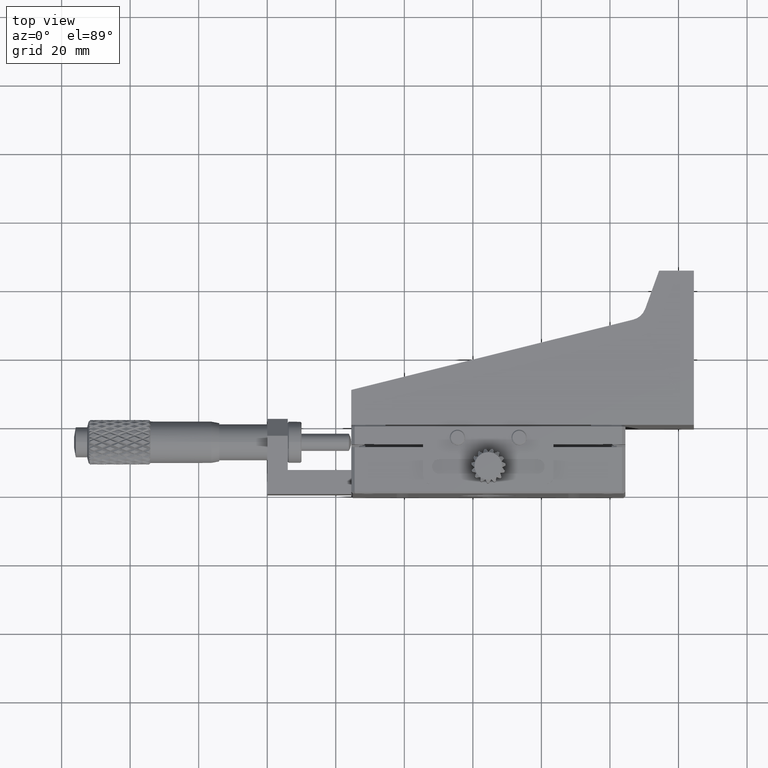
[diagram: clean part render]
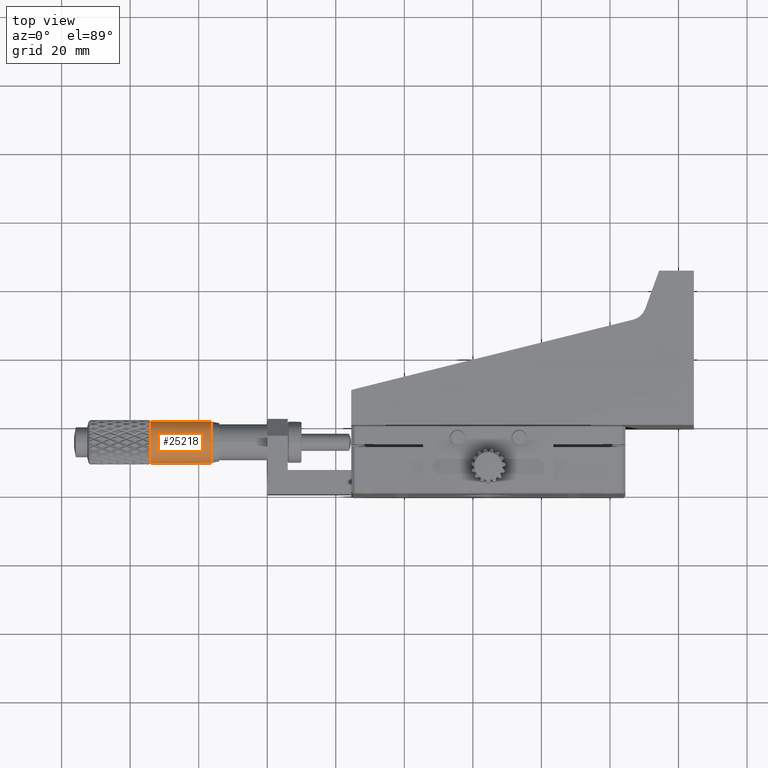
[diagram: same view with one face highlighted and labeled with its STEP entity id]
A machine part, top view. The second image highlights one B-rep face of the part: STEP entity #25218.
In plain terms, the highlighted cylindrical surface (bore or boss wall) has radius 6.051 mm, axis along (-1, 0, 0).
Its self-contained STEP definition (entity closure, byte-faithful):
#100 = DIRECTION ( 'NONE',  ( -1.000000000000000000, 0.000000000000000000, 2.238858211715239907E-20 ) ) ;
#155 = CARTESIAN_POINT ( 'NONE',  ( -34.05100000015932693, 20.20751008924129266, 3.539907586928638050 ) ) ;
#369 = ORIENTED_EDGE ( 'NONE', *, *, #39286, .T. ) ;
#560 = DIRECTION ( 'NONE',  ( 0.000000000000000000, -2.580153905766197735E-15, 1.000000000000000000 ) ) ;
#580 = CARTESIAN_POINT ( 'NONE',  ( -34.05100000000000193, 15.30000000000000071, -5.051647673718340635E-19 ) ) ;
#646 = DIRECTION ( 'NONE',  ( 1.000000000000000000, -0.000000000000000000, -2.238858211715239907E-20 ) ) ;
#694 = DIRECTION ( 'NONE',  ( 1.000000000000000000, -0.000000000000000000, -2.238858211715239907E-20 ) ) ;
#737 = CARTESIAN_POINT ( 'NONE',  ( -34.05100000015931982, 20.18315619527319882, -3.573427846279395137 ) ) ;
#782 = DIRECTION ( 'NONE',  ( 0.000000000000000000, 0.000000000000000000, 1.000000000000000000 ) ) ;
#1102 = DIRECTION ( 'NONE',  ( 0.000000000000000000, 8.600513019220660102E-16, 1.000000000000000000 ) ) ;
#1172 = CARTESIAN_POINT ( 'NONE',  ( -34.05100000000000193, 15.30000000000000071, -5.051647673718340635E-19 ) ) ;
#1189 = AXIS2_PLACEMENT_3D ( 'NONE', #17262, #20570, #5320 ) ;
#1238 = ORIENTED_EDGE ( 'NONE', *, *, #19862, .T. ) ;
#1457 = CARTESIAN_POINT ( 'NONE',  ( -34.05100000012796357, 21.04840745227851784, 1.889553588175999721 ) ) ;
#1574 = VERTEX_POINT ( 'NONE', #47646 ) ;
#1579 = CIRCLE ( 'NONE', #32355, 6.051000000000000156 ) ;
#1826 = CIRCLE ( 'NONE', #23721, 6.051000000000000156 ) ;
#1948 = AXIS2_PLACEMENT_3D ( 'NONE', #24183, #31257, #39605 ) ;
#2143 = EDGE_LOOP ( 'NONE', ( #34148, #19107, #26807, #40915, #11643, #17091, #48289, #5551, #3003, #27859, #50152, #14815, #26030, #43819, #14726, #33409, #22529, #2162, #1238, #36184, #5132, #23498, #41895, #33923, #48294, #44883, #2766, #369, #20745, #41861, #9617, #39833, #6893, #46920, #26250, #32513, #19829, #38737, #47581, #29854 ) ) ;
#2162 = ORIENTED_EDGE ( 'NONE', *, *, #20408, .T. ) ;
#2699 = VERTEX_POINT ( 'NONE', #36345 ) ;
#2723 = DIRECTION ( 'NONE',  ( 1.000000000000000000, -0.000000000000000000, -2.238858211715239907E-20 ) ) ;
#2766 = ORIENTED_EDGE ( 'NONE', *, *, #43908, .T. ) ;
#2905 = VERTEX_POINT ( 'NONE', #20649 ) ;
#2919 = DIRECTION ( 'NONE',  ( 0.000000000000000000, 0.000000000000000000, 1.000000000000000000 ) ) ;
#3003 = ORIENTED_EDGE ( 'NONE', *, *, #20875, .T. ) ;
#3053 = CARTESIAN_POINT ( 'NONE',  ( -34.05100000000000193, 15.30000000000000071, -5.051647673718340635E-19 ) ) ;
#3130 = VERTEX_POINT ( 'NONE', #41364 ) ;
#3810 = DIRECTION ( 'NONE',  ( 0.000000000000000000, 8.027145484605948508E-15, 1.000000000000000000 ) ) ;
#3825 = CIRCLE ( 'NONE', #10319, 6.051000000000000156 ) ;
#3904 = EDGE_CURVE ( 'NONE', #19767, #4836, #9988, .T. ) ;
#3966 = CIRCLE ( 'NONE', #45253, 6.051000000000000156 ) ;
#4436 = VERTEX_POINT ( 'NONE', #16689 ) ;
#4584 = DIRECTION ( 'NONE',  ( 1.000000000000000000, -0.000000000000000000, -2.238858211715239907E-20 ) ) ;
#4756 = CARTESIAN_POINT ( 'NONE',  ( -34.05100000015932693, 11.72657215372058914, -4.883156195273184785 ) ) ;
#4836 = VERTEX_POINT ( 'NONE', #8189 ) ;
#4867 = DIRECTION ( 'NONE',  ( 0.000000000000000000, -2.035454747882222894E-14, 1.000000000000000000 ) ) ;
#4944 = EDGE_CURVE ( 'NONE', #16737, #20732, #39146, .T. ) ;
#5084 = DIRECTION ( 'NONE',  ( 1.000000000000000000, -0.000000000000000000, -2.238858211715239907E-20 ) ) ;
#5132 = ORIENTED_EDGE ( 'NONE', *, *, #8416, .T. ) ;
#5320 = DIRECTION ( 'NONE',  ( 0.000000000000000000, 0.000000000000000000, 1.000000000000000000 ) ) ;
#5480 = DIRECTION ( 'NONE',  ( 0.000000000000000000, 0.000000000000000000, 1.000000000000000000 ) ) ;
#5551 = ORIENTED_EDGE ( 'NONE', *, *, #10672, .T. ) ;
#5831 = CARTESIAN_POINT ( 'NONE',  ( -34.05100000012797068, 17.18955358817598267, -5.748407452278524232 ) ) ;
#6169 = VERTEX_POINT ( 'NONE', #34802 ) ;
#6356 = AXIS2_PLACEMENT_3D ( 'NONE', #44756, #11748, #7658 ) ;
#6468 = CARTESIAN_POINT ( 'NONE',  ( -16.32100000000491491, 15.30000000000000071, 6.050999999999362444 ) ) ;
#6476 = EDGE_CURVE ( 'NONE', #10628, #21248, #42433, .T. ) ;
#6572 = CIRCLE ( 'NONE', #29253, 6.051000000000000156 ) ;
#6606 = AXIS2_PLACEMENT_3D ( 'NONE', #13659, #2723, #29580 ) ;
#6683 = DIRECTION ( 'NONE',  ( 0.000000000000000000, 0.000000000000000000, 1.000000000000000000 ) ) ;
#6745 = AXIS2_PLACEMENT_3D ( 'NONE', #40726, #39969, #28550 ) ;
#6833 = AXIS2_PLACEMENT_3D ( 'NONE', #7493, #37244, #17998 ) ;
#6893 = ORIENTED_EDGE ( 'NONE', *, *, #18009, .T. ) ;
#7493 = CARTESIAN_POINT ( 'NONE',  ( -34.05100000000000193, 15.30000000000000071, -5.051647673718340635E-19 ) ) ;
#7589 = VERTEX_POINT ( 'NONE', #29243 ) ;
#7658 = DIRECTION ( 'NONE',  ( 0.000000000000000000, 0.000000000000000000, 1.000000000000000000 ) ) ;
#7726 = CARTESIAN_POINT ( 'NONE',  ( -34.05100000012794936, 9.249035463662350409, -0.02071665957804772612 ) ) ;
#7739 = VERTEX_POINT ( 'NONE', #41408 ) ;
#7986 = CIRCLE ( 'NONE', #41991, 6.051000000000000156 ) ;
#8189 = CARTESIAN_POINT ( 'NONE',  ( -34.05100000015934114, 21.35096453633761371, -0.02071665959048520078 ) ) ;
#8310 = DIRECTION ( 'NONE',  ( 0.000000000000000000, 0.000000000000000000, 1.000000000000000000 ) ) ;
#8365 = CARTESIAN_POINT ( 'NONE',  ( -34.05100000012794936, 9.538788947968892984, 1.850148160000891773 ) ) ;
#8397 = DIRECTION ( 'NONE',  ( 0.000000000000000000, 0.000000000000000000, 1.000000000000000000 ) ) ;
#8416 = EDGE_CURVE ( 'NONE', #2699, #42842, #31148, .T. ) ;
#8754 = EDGE_CURVE ( 'NONE', #13117, #17596, #14178, .T. ) ;
#8909 = CARTESIAN_POINT ( 'NONE',  ( -34.05100000012794936, 21.35096453633766345, 0.02071665957800971139 ) ) ;
#8922 = EDGE_CURVE ( 'NONE', #32333, #10628, #41678, .T. ) ;
#8948 = CARTESIAN_POINT ( 'NONE',  ( -34.05100000012794936, 20.20751008923400249, -3.539907586938757511 ) ) ;
#9239 = VERTEX_POINT ( 'NONE', #48668 ) ;
#9348 = DIRECTION ( 'NONE',  ( 1.000000000000000000, -0.000000000000000000, -2.238858211715239907E-20 ) ) ;
#9559 = AXIS2_PLACEMENT_3D ( 'NONE', #40013, #29093, #9599 ) ;
#9599 = DIRECTION ( 'NONE',  ( 0.000000000000000000, -3.440205207688264041E-15, 1.000000000000000000 ) ) ;
#9617 = ORIENTED_EDGE ( 'NONE', *, *, #20832, .T. ) ;
#9782 = CARTESIAN_POINT ( 'NONE',  ( -34.05100000015934825, 15.32071665959055373, 6.050964536337619215 ) ) ;
#9936 = DIRECTION ( 'NONE',  ( 1.000000000000000000, -0.000000000000000000, -2.238858211715239907E-20 ) ) ;
#9988 = CIRCLE ( 'NONE', #42356, 6.051000000000000156 ) ;
#10030 = CARTESIAN_POINT ( 'NONE',  ( -34.05100000015935535, 21.06121105203490629, 1.850148159989047025 ) ) ;
#10319 = AXIS2_PLACEMENT_3D ( 'NONE', #42793, #14953, #19507 ) ;
#10628 = VERTEX_POINT ( 'NONE', #19515 ) ;
#10672 = EDGE_CURVE ( 'NONE', #4836, #37102, #14208, .T. ) ;
#10855 = CIRCLE ( 'NONE', #43205, 6.051000000000000156 ) ;
#10955 = VERTEX_POINT ( 'NONE', #12361 ) ;
#11217 = CARTESIAN_POINT ( 'NONE',  ( -34.05100000000000193, 15.30000000000000071, -5.051647673718340635E-19 ) ) ;
#11251 = AXIS2_PLACEMENT_3D ( 'NONE', #42614, #11983, #782 ) ;
#11302 = VERTEX_POINT ( 'NONE', #38393 ) ;
#11441 = CARTESIAN_POINT ( 'NONE',  ( -34.05100000000000193, 15.30000000000000071, -5.051647673718340635E-19 ) ) ;
#11459 = DIRECTION ( 'NONE',  ( 1.000000000000000000, -0.000000000000000000, -2.238858211715239907E-20 ) ) ;
#11576 = CIRCLE ( 'NONE', #17265, 6.051000000000000156 ) ;
#11643 = ORIENTED_EDGE ( 'NONE', *, *, #26739, .T. ) ;
#11680 = AXIS2_PLACEMENT_3D ( 'NONE', #14511, #18319, #41356 ) ;
#11748 = DIRECTION ( 'NONE',  ( 1.000000000000000000, -0.000000000000000000, -2.238858211715239907E-20 ) ) ;
#11983 = DIRECTION ( 'NONE',  ( 1.000000000000000000, -0.000000000000000000, -2.238858211715239907E-20 ) ) ;
#12008 = CIRCLE ( 'NONE', #22565, 6.051000000000000156 ) ;
#12218 = CIRCLE ( 'NONE', #30771, 6.051000000000000156 ) ;
#12361 = CARTESIAN_POINT ( 'NONE',  ( -34.05100000015936956, 9.249035463662384160, 0.02071665959053605593 ) ) ;
#12556 = CARTESIAN_POINT ( 'NONE',  ( -34.05100000000000193, 15.30000000000000071, -5.051647673718340635E-19 ) ) ;
#13007 = VERTEX_POINT ( 'NONE', #37741 ) ;
#13052 = CARTESIAN_POINT ( 'NONE',  ( -34.05100000015934114, 17.15014815998903330, -5.761211052034905578 ) ) ;
#13117 = VERTEX_POINT ( 'NONE', #44281 ) ;
#13511 = CARTESIAN_POINT ( 'NONE',  ( -34.05100000000000193, 15.30000000000000071, -5.051647673718340635E-19 ) ) ;
#13659 = CARTESIAN_POINT ( 'NONE',  ( -34.05100000000000193, 15.30000000000000071, -5.051647673718340635E-19 ) ) ;
#13851 = DIRECTION ( 'NONE',  ( 1.000000000000000000, -0.000000000000000000, -2.238858211715239907E-20 ) ) ;
#13910 = DIRECTION ( 'NONE',  ( 0.000000000000000000, 1.528024479748203967E-13, 1.000000000000000000 ) ) ;
#14047 = DIRECTION ( 'NONE',  ( 0.000000000000000000, 0.000000000000000000, 1.000000000000000000 ) ) ;
#14178 = CIRCLE ( 'NONE', #26313, 6.051000000000000156 ) ;
#14208 = CIRCLE ( 'NONE', #42508, 6.051000000000000156 ) ;
#14334 = VERTEX_POINT ( 'NONE', #8365 ) ;
#14511 = CARTESIAN_POINT ( 'NONE',  ( -34.05100000000000193, 15.30000000000000071, -5.051647673718340635E-19 ) ) ;
#14726 = ORIENTED_EDGE ( 'NONE', *, *, #48802, .T. ) ;
#14776 = CARTESIAN_POINT ( 'NONE',  ( -34.05100000012793515, 21.06121105203109067, -1.850148160000935516 ) ) ;
#14815 = ORIENTED_EDGE ( 'NONE', *, *, #45452, .T. ) ;
#14953 = DIRECTION ( 'NONE',  ( 1.000000000000000000, -0.000000000000000000, -2.238858211715239907E-20 ) ) ;
#14969 = CIRCLE ( 'NONE', #35970, 6.051000000000000156 ) ;
#15360 = CARTESIAN_POINT ( 'NONE',  ( -56.00100000000000477, 15.30000000000000071, -1.373538990033890044E-20 ) ) ;
#15364 = CARTESIAN_POINT ( 'NONE',  ( -34.05100000000000193, 15.30000000000000071, -5.051647673718340635E-19 ) ) ;
#15641 = DIRECTION ( 'NONE',  ( 0.000000000000000000, 0.000000000000000000, 1.000000000000000000 ) ) ;
#15732 = AXIS2_PLACEMENT_3D ( 'NONE', #19080, #4584, #8397 ) ;
#15762 = CIRCLE ( 'NONE', #44081, 6.051000000000000156 ) ;
#15937 = EDGE_CURVE ( 'NONE', #24681, #2699, #3825, .T. ) ;
#15984 = DIRECTION ( 'NONE',  ( 1.000000000000000000, -0.000000000000000000, -2.238858211715239907E-20 ) ) ;
#16094 = DIRECTION ( 'NONE',  ( 1.000000000000000000, -0.000000000000000000, -2.238858211715239907E-20 ) ) ;
#16312 = DIRECTION ( 'NONE',  ( 0.000000000000000000, 4.300256509610329558E-15, 1.000000000000000000 ) ) ;
#16521 = DIRECTION ( 'NONE',  ( 0.000000000000000000, 0.000000000000000000, 1.000000000000000000 ) ) ;
#16689 = CARTESIAN_POINT ( 'NONE',  ( -34.05100000012793515, 18.87342784626931547, -4.883156195280585088 ) ) ;
#16737 = VERTEX_POINT ( 'NONE', #5831 ) ;
#16847 = CIRCLE ( 'NONE', #9559, 6.051000000000000156 ) ;
#17072 = DIRECTION ( 'NONE',  ( 0.000000000000000000, 0.000000000000000000, 1.000000000000000000 ) ) ;
#17091 = ORIENTED_EDGE ( 'NONE', *, *, #44806, .T. ) ;
#17174 = VERTEX_POINT ( 'NONE', #9782 ) ;
#17262 = CARTESIAN_POINT ( 'NONE',  ( -34.05100000000000193, 15.30000000000000071, -5.051647673718340635E-19 ) ) ;
#17265 = AXIS2_PLACEMENT_3D ( 'NONE', #24785, #40218, #5480 ) ;
#17561 = EDGE_CURVE ( 'NONE', #38680, #32333, #16847, .T. ) ;
#17596 = VERTEX_POINT ( 'NONE', #47872 ) ;
#17603 = CARTESIAN_POINT ( 'NONE',  ( -34.05100000000000193, 15.30000000000000071, -5.051647673718340635E-19 ) ) ;
#17844 = DIRECTION ( 'NONE',  ( 1.000000000000000000, -0.000000000000000000, -2.238858211715239907E-20 ) ) ;
#17848 = DIRECTION ( 'NONE',  ( 0.000000000000000000, 2.580153905766197735E-15, 1.000000000000000000 ) ) ;
#17880 = EDGE_CURVE ( 'NONE', #21248, #16737, #12008, .T. ) ;
#17998 = DIRECTION ( 'NONE',  ( 0.000000000000000000, 0.000000000000000000, 1.000000000000000000 ) ) ;
#18009 = EDGE_CURVE ( 'NONE', #28483, #18384, #29796, .T. ) ;
#18035 = VERTEX_POINT ( 'NONE', #19093 ) ;
#18098 = AXIS2_PLACEMENT_3D ( 'NONE', #3053, #37775, #18532 ) ;
#18296 = EDGE_CURVE ( 'NONE', #9239, #6169, #28993, .T. ) ;
#18319 = DIRECTION ( 'NONE',  ( 1.000000000000000000, -0.000000000000000000, -2.238858211715239907E-20 ) ) ;
#18384 = VERTEX_POINT ( 'NONE', #4756 ) ;
#18532 = DIRECTION ( 'NONE',  ( 0.000000000000000000, -4.099577872495181082E-14, 1.000000000000000000 ) ) ;
#19055 = DIRECTION ( 'NONE',  ( 1.000000000000000000, -0.000000000000000000, -2.238858211715239907E-20 ) ) ;
#19080 = CARTESIAN_POINT ( 'NONE',  ( -34.05100000000000193, 15.30000000000000071, -5.051647673718340635E-19 ) ) ;
#19093 = CARTESIAN_POINT ( 'NONE',  ( -34.05100000012796357, 17.15014816000090647, 5.761211052031099733 ) ) ;
#19107 = ORIENTED_EDGE ( 'NONE', *, *, #30860, .T. ) ;
#19370 = AXIS2_PLACEMENT_3D ( 'NONE', #23626, #39057, #34995 ) ;
#19372 = ORIENTED_EDGE ( 'NONE', *, *, #32080, .F. ) ;
#19412 = DIRECTION ( 'NONE',  ( 1.000000000000000000, -0.000000000000000000, -2.238858211715239907E-20 ) ) ;
#19416 = VERTEX_POINT ( 'NONE', #10030 ) ;
#19488 = VERTEX_POINT ( 'NONE', #26238 ) ;
#19507 = DIRECTION ( 'NONE',  ( 0.000000000000000000, 2.580153905766197735E-15, 1.000000000000000000 ) ) ;
#19515 = CARTESIAN_POINT ( 'NONE',  ( -34.05100000012799200, 15.32071665957808726, -6.050964536337652966 ) ) ;
#19599 = DIRECTION ( 'NONE',  ( 1.000000000000000000, -0.000000000000000000, -2.238858211715239907E-20 ) ) ;
#19767 = VERTEX_POINT ( 'NONE', #14776 ) ;
#19829 = ORIENTED_EDGE ( 'NONE', *, *, #17561, .T. ) ;
#19858 = AXIS2_PLACEMENT_3D ( 'NONE', #39188, #646, #20710 ) ;
#19862 = EDGE_CURVE ( 'NONE', #13007, #24681, #33116, .T. ) ;
#19912 = FACE_OUTER_BOUND ( 'NONE', #2143, .T. ) ;
#20150 = CIRCLE ( 'NONE', #43590, 6.051000000000000156 ) ;
#20408 = EDGE_CURVE ( 'NONE', #17174, #13007, #7986, .T. ) ;
#20570 = DIRECTION ( 'NONE',  ( 1.000000000000000000, -0.000000000000000000, -2.238858211715239907E-20 ) ) ;
#20592 = CIRCLE ( 'NONE', #45662, 6.051000000000000156 ) ;
#20649 = CARTESIAN_POINT ( 'NONE',  ( -34.05100000015932693, 10.39248991075868389, -3.539907586928603855 ) ) ;
#20710 = DIRECTION ( 'NONE',  ( 0.000000000000000000, 2.044055260901443545E-13, 1.000000000000000000 ) ) ;
#20732 = VERTEX_POINT ( 'NONE', #31731 ) ;
#20745 = ORIENTED_EDGE ( 'NONE', *, *, #29138, .T. ) ;
#20832 = EDGE_CURVE ( 'NONE', #3130, #2905, #3966, .T. ) ;
#20875 = EDGE_CURVE ( 'NONE', #37102, #19416, #49281, .T. ) ;
#21158 = CARTESIAN_POINT ( 'NONE',  ( -34.05100000000000193, 15.30000000000000071, -5.051647673718340635E-19 ) ) ;
#21166 = VERTEX_POINT ( 'NONE', #7726 ) ;
#21189 = CIRCLE ( 'NONE', #27626, 6.051000000000000156 ) ;
#21248 = VERTEX_POINT ( 'NONE', #13052 ) ;
#21270 = DIRECTION ( 'NONE',  ( 1.000000000000000000, -0.000000000000000000, -2.238858211715239907E-20 ) ) ;
#21646 = DIRECTION ( 'NONE',  ( 1.000000000000000000, -0.000000000000000000, -2.238858211715239907E-20 ) ) ;
#21667 = EDGE_CURVE ( 'NONE', #2905, #28483, #1579, .T. ) ;
#21764 = CARTESIAN_POINT ( 'NONE',  ( -34.05100000000000193, 15.30000000000000071, -5.051647673718340635E-19 ) ) ;
#21849 = CARTESIAN_POINT ( 'NONE',  ( -34.05100000000000193, 15.30000000000000071, -5.051647673718340635E-19 ) ) ;
#22529 = ORIENTED_EDGE ( 'NONE', *, *, #37047, .T. ) ;
#22565 = AXIS2_PLACEMENT_3D ( 'NONE', #1172, #36652, #47575 ) ;
#22566 = VERTEX_POINT ( 'NONE', #46692 ) ;
#22612 = CARTESIAN_POINT ( 'NONE',  ( -34.05100000000000193, 15.30000000000000071, -5.051647673718340635E-19 ) ) ;
#22649 = DIRECTION ( 'NONE',  ( 1.000000000000000000, -0.000000000000000000, -2.238858211715239907E-20 ) ) ;
#23498 = ORIENTED_EDGE ( 'NONE', *, *, #29576, .T. ) ;
#23626 = CARTESIAN_POINT ( 'NONE',  ( -34.05100000000000193, 15.30000000000000071, -5.051647673718340635E-19 ) ) ;
#23721 = AXIS2_PLACEMENT_3D ( 'NONE', #11441, #19055, #41835 ) ;
#23731 = CYLINDRICAL_SURFACE ( 'NONE', #47101, 6.051000000000000156 ) ;
#23798 = AXIS2_PLACEMENT_3D ( 'NONE', #29144, #5084, #16521 ) ;
#23806 = EDGE_CURVE ( 'NONE', #7739, #3130, #10855, .T. ) ;
#24183 = CARTESIAN_POINT ( 'NONE',  ( -16.32100000000491491, 15.30000000000000071, -9.021143283088344047E-19 ) ) ;
#24664 = CIRCLE ( 'NONE', #1948, 6.050999999999362444 ) ;
#24667 = CARTESIAN_POINT ( 'NONE',  ( -34.05100000000000193, 15.30000000000000071, -5.051647673718340635E-19 ) ) ;
#24681 = VERTEX_POINT ( 'NONE', #37719 ) ;
#24785 = CARTESIAN_POINT ( 'NONE',  ( -34.05100000000000193, 15.30000000000000071, -5.051647673718340635E-19 ) ) ;
#25218 = ADVANCED_FACE ( 'NONE', ( #38904, #19912 ), #23731, .T. ) ;
#25384 = EDGE_CURVE ( 'NONE', #22566, #18035, #28445, .T. ) ;
#25923 = DIRECTION ( 'NONE',  ( 0.000000000000000000, 8.715186526143601238E-14, 1.000000000000000000 ) ) ;
#26030 = ORIENTED_EDGE ( 'NONE', *, *, #29493, .T. ) ;
#26238 = CARTESIAN_POINT ( 'NONE',  ( -34.05100000015935535, 21.04840745227461696, -1.889553588187852240 ) ) ;
#26250 = ORIENTED_EDGE ( 'NONE', *, *, #8754, .T. ) ;
#26313 = AXIS2_PLACEMENT_3D ( 'NONE', #38441, #42726, #15641 ) ;
#26739 = EDGE_CURVE ( 'NONE', #42505, #19488, #31747, .T. ) ;
#26807 = ORIENTED_EDGE ( 'NONE', *, *, #35419, .T. ) ;
#27350 = VERTEX_POINT ( 'NONE', #737 ) ;
#27589 = DIRECTION ( 'NONE',  ( 1.000000000000000000, -0.000000000000000000, -2.238858211715239907E-20 ) ) ;
#27626 = AXIS2_PLACEMENT_3D ( 'NONE', #34229, #30424, #42091 ) ;
#27859 = ORIENTED_EDGE ( 'NONE', *, *, #46278, .T. ) ;
#27947 = EDGE_CURVE ( 'NONE', #27350, #42505, #1826, .T. ) ;
#28445 = CIRCLE ( 'NONE', #6606, 6.051000000000000156 ) ;
#28483 = VERTEX_POINT ( 'NONE', #43904 ) ;
#28550 = DIRECTION ( 'NONE',  ( 0.000000000000000000, 0.000000000000000000, 1.000000000000000000 ) ) ;
#28993 = CIRCLE ( 'NONE', #46010, 6.051000000000000156 ) ;
#29093 = DIRECTION ( 'NONE',  ( 1.000000000000000000, -0.000000000000000000, -2.238858211715239907E-20 ) ) ;
#29138 = EDGE_CURVE ( 'NONE', #21166, #7739, #11576, .T. ) ;
#29144 = CARTESIAN_POINT ( 'NONE',  ( -34.05100000000000193, 15.30000000000000071, -5.051647673718340635E-19 ) ) ;
#29243 = CARTESIAN_POINT ( 'NONE',  ( -34.05100000012796357, 20.18315619528056715, 3.573427846269339181 ) ) ;
#29253 = AXIS2_PLACEMENT_3D ( 'NONE', #21158, #17844, #14047 ) ;
#29493 = EDGE_CURVE ( 'NONE', #7589, #1574, #48013, .T. ) ;
#29576 = EDGE_CURVE ( 'NONE', #42842, #11302, #37495, .T. ) ;
#29580 = DIRECTION ( 'NONE',  ( 0.000000000000000000, -4.850689342840452341E-13, 1.000000000000000000 ) ) ;
#29796 = CIRCLE ( 'NONE', #6356, 6.051000000000000156 ) ;
#29854 = ORIENTED_EDGE ( 'NONE', *, *, #17880, .T. ) ;
#30412 = DIRECTION ( 'NONE',  ( 1.000000000000000000, -0.000000000000000000, -2.238858211715239907E-20 ) ) ;
#30424 = DIRECTION ( 'NONE',  ( 1.000000000000000000, -0.000000000000000000, -2.238858211715239907E-20 ) ) ;
#30466 = CARTESIAN_POINT ( 'NONE',  ( -34.05100000000000193, 15.30000000000000071, -5.051647673718340635E-19 ) ) ;
#30771 = AXIS2_PLACEMENT_3D ( 'NONE', #11217, #22649, #45921 ) ;
#30787 = DIRECTION ( 'NONE',  ( 0.000000000000000000, 0.000000000000000000, 1.000000000000000000 ) ) ;
#30860 = EDGE_CURVE ( 'NONE', #20732, #4436, #36706, .T. ) ;
#31148 = CIRCLE ( 'NONE', #1189, 6.051000000000000156 ) ;
#31257 = DIRECTION ( 'NONE',  ( 1.000000000000000000, -0.000000000000000000, -2.238858211715239907E-20 ) ) ;
#31712 = AXIS2_PLACEMENT_3D ( 'NONE', #39747, #27589, #42803 ) ;
#31731 = CARTESIAN_POINT ( 'NONE',  ( -34.05100000015931982, 18.83990758692862499, -4.907510089241307050 ) ) ;
#31747 = CIRCLE ( 'NONE', #39809, 6.051000000000000156 ) ;
#32080 = EDGE_CURVE ( 'NONE', #48805, #48805, #24664, .T. ) ;
#32173 = EDGE_CURVE ( 'NONE', #6169, #46266, #35115, .T. ) ;
#32316 = CIRCLE ( 'NONE', #19370, 6.051000000000000156 ) ;
#32333 = VERTEX_POINT ( 'NONE', #50219 ) ;
#32355 = AXIS2_PLACEMENT_3D ( 'NONE', #22612, #30412, #34471 ) ;
#32513 = ORIENTED_EDGE ( 'NONE', *, *, #39555, .T. ) ;
#32985 = DIRECTION ( 'NONE',  ( 0.000000000000000000, -8.600513019220660102E-16, 1.000000000000000000 ) ) ;
#33116 = CIRCLE ( 'NONE', #11251, 6.051000000000000156 ) ;
#33409 = ORIENTED_EDGE ( 'NONE', *, *, #25384, .T. ) ;
#33433 = EDGE_CURVE ( 'NONE', #46266, #14334, #47214, .T. ) ;
#33923 = ORIENTED_EDGE ( 'NONE', *, *, #18296, .T. ) ;
#34148 = ORIENTED_EDGE ( 'NONE', *, *, #4944, .T. ) ;
#34229 = CARTESIAN_POINT ( 'NONE',  ( -34.05100000000000193, 15.30000000000000071, -5.051647673718340635E-19 ) ) ;
#34471 = DIRECTION ( 'NONE',  ( 0.000000000000000000, 1.430551998863703085E-13, 1.000000000000000000 ) ) ;
#34691 = AXIS2_PLACEMENT_3D ( 'NONE', #48983, #11459, #25923 ) ;
#34802 = CARTESIAN_POINT ( 'NONE',  ( -34.05100000012796357, 10.39248991076597406, 3.539907586938706885 ) ) ;
#34995 = DIRECTION ( 'NONE',  ( 0.000000000000000000, -4.271588132879594485E-13, 1.000000000000000000 ) ) ;
#35115 = CIRCLE ( 'NONE', #45648, 6.051000000000000156 ) ;
#35312 = DIRECTION ( 'NONE',  ( 1.000000000000000000, -0.000000000000000000, -2.238858211715239907E-20 ) ) ;
#35346 = DIRECTION ( 'NONE',  ( 0.000000000000000000, 0.000000000000000000, 1.000000000000000000 ) ) ;
#35419 = EDGE_CURVE ( 'NONE', #4436, #27350, #38340, .T. ) ;
#35954 = CARTESIAN_POINT ( 'NONE',  ( -34.05100000000000193, 15.30000000000000071, -5.051647673718340635E-19 ) ) ;
#35970 = AXIS2_PLACEMENT_3D ( 'NONE', #38538, #15984, #3810 ) ;
#36184 = ORIENTED_EDGE ( 'NONE', *, *, #15937, .T. ) ;
#36303 = VERTEX_POINT ( 'NONE', #1457 ) ;
#36345 = CARTESIAN_POINT ( 'NONE',  ( -34.05100000012793515, 13.41044641182402941, 5.748407452278528673 ) ) ;
#36652 = DIRECTION ( 'NONE',  ( 1.000000000000000000, -0.000000000000000000, -2.238858211715239907E-20 ) ) ;
#36706 = CIRCLE ( 'NONE', #6745, 6.051000000000000156 ) ;
#37047 = EDGE_CURVE ( 'NONE', #18035, #17174, #12218, .T. ) ;
#37094 = DIRECTION ( 'NONE',  ( 1.000000000000000000, -0.000000000000000000, -2.238858211715239907E-20 ) ) ;
#37102 = VERTEX_POINT ( 'NONE', #8909 ) ;
#37244 = DIRECTION ( 'NONE',  ( 1.000000000000000000, -0.000000000000000000, -2.238858211715239907E-20 ) ) ;
#37495 = CIRCLE ( 'NONE', #41553, 6.051000000000000156 ) ;
#37719 = CARTESIAN_POINT ( 'NONE',  ( -34.05100000015931982, 13.44985184001100009, 5.761211052034929558 ) ) ;
#37741 = CARTESIAN_POINT ( 'NONE',  ( -34.05100000012796357, 15.27928334042196568, 6.050964536337650301 ) ) ;
#37775 = DIRECTION ( 'NONE',  ( 1.000000000000000000, -0.000000000000000000, -2.238858211715239907E-20 ) ) ;
#38340 = CIRCLE ( 'NONE', #23798, 6.051000000000000156 ) ;
#38393 = CARTESIAN_POINT ( 'NONE',  ( -34.05100000012794936, 11.72657215373064865, 4.883156195280558443 ) ) ;
#38441 = CARTESIAN_POINT ( 'NONE',  ( -34.05100000000000193, 15.30000000000000071, -5.051647673718340635E-19 ) ) ;
#38538 = CARTESIAN_POINT ( 'NONE',  ( -34.05100000000000193, 15.30000000000000071, -5.051647673718340635E-19 ) ) ;
#38680 = VERTEX_POINT ( 'NONE', #40831 ) ;
#38737 = ORIENTED_EDGE ( 'NONE', *, *, #8922, .T. ) ;
#38904 = FACE_OUTER_BOUND ( 'NONE', #40907, .T. ) ;
#39057 = DIRECTION ( 'NONE',  ( 1.000000000000000000, -0.000000000000000000, -2.238858211715239907E-20 ) ) ;
#39146 = CIRCLE ( 'NONE', #11680, 6.051000000000000156 ) ;
#39188 = CARTESIAN_POINT ( 'NONE',  ( -34.05100000000000193, 15.30000000000000071, -5.051647673718340635E-19 ) ) ;
#39286 = EDGE_CURVE ( 'NONE', #10955, #21166, #6572, .T. ) ;
#39555 = EDGE_CURVE ( 'NONE', #17596, #38680, #21189, .T. ) ;
#39605 = DIRECTION ( 'NONE',  ( 0.000000000000000000, 0.000000000000000000, 1.000000000000000000 ) ) ;
#39724 = CARTESIAN_POINT ( 'NONE',  ( -34.05100000000000193, 15.30000000000000071, -5.051647673718340635E-19 ) ) ;
#39747 = CARTESIAN_POINT ( 'NONE',  ( -34.05100000000000193, 15.30000000000000071, -5.051647673718340635E-19 ) ) ;
#39809 = AXIS2_PLACEMENT_3D ( 'NONE', #17603, #37094, #17848 ) ;
#39833 = ORIENTED_EDGE ( 'NONE', *, *, #21667, .T. ) ;
#39969 = DIRECTION ( 'NONE',  ( 1.000000000000000000, -0.000000000000000000, -2.238858211715239907E-20 ) ) ;
#40013 = CARTESIAN_POINT ( 'NONE',  ( -34.05100000000000193, 15.30000000000000071, -5.051647673718340635E-19 ) ) ;
#40218 = DIRECTION ( 'NONE',  ( 1.000000000000000000, -0.000000000000000000, -2.238858211715239907E-20 ) ) ;
#40492 = EDGE_CURVE ( 'NONE', #36303, #46713, #20150, .T. ) ;
#40726 = CARTESIAN_POINT ( 'NONE',  ( -34.05100000000000193, 15.30000000000000071, -5.051647673718340635E-19 ) ) ;
#40831 = CARTESIAN_POINT ( 'NONE',  ( -34.05100000012795647, 13.44985183999913758, -5.761211052031112168 ) ) ;
#40907 = EDGE_LOOP ( 'NONE', ( #19372 ) ) ;
#40915 = ORIENTED_EDGE ( 'NONE', *, *, #27947, .T. ) ;
#41356 = DIRECTION ( 'NONE',  ( 0.000000000000000000, 0.000000000000000000, 1.000000000000000000 ) ) ;
#41364 = CARTESIAN_POINT ( 'NONE',  ( -34.05100000012793515, 9.551592547721492465, -1.889553588176031917 ) ) ;
#41408 = CARTESIAN_POINT ( 'NONE',  ( -34.05100000015936246, 9.538788947965077369, -1.850148159989001062 ) ) ;
#41553 = AXIS2_PLACEMENT_3D ( 'NONE', #24667, #47956, #4867 ) ;
#41678 = CIRCLE ( 'NONE', #19858, 6.051000000000000156 ) ;
#41835 = DIRECTION ( 'NONE',  ( 0.000000000000000000, 0.000000000000000000, 1.000000000000000000 ) ) ;
#41861 = ORIENTED_EDGE ( 'NONE', *, *, #23806, .T. ) ;
#41895 = ORIENTED_EDGE ( 'NONE', *, *, #47560, .T. ) ;
#41991 = AXIS2_PLACEMENT_3D ( 'NONE', #12556, #16094, #43944 ) ;
#42091 = DIRECTION ( 'NONE',  ( 0.000000000000000000, 0.000000000000000000, 1.000000000000000000 ) ) ;
#42133 = CARTESIAN_POINT ( 'NONE',  ( -34.05100000012796357, 18.83990758693873246, 4.907510089234009776 ) ) ;
#42321 = DIRECTION ( 'NONE',  ( 0.000000000000000000, 0.000000000000000000, 1.000000000000000000 ) ) ;
#42356 = AXIS2_PLACEMENT_3D ( 'NONE', #44717, #44963, #6683 ) ;
#42433 = CIRCLE ( 'NONE', #6833, 6.051000000000000156 ) ;
#42505 = VERTEX_POINT ( 'NONE', #8948 ) ;
#42508 = AXIS2_PLACEMENT_3D ( 'NONE', #21764, #21270, #13910 ) ;
#42603 = CARTESIAN_POINT ( 'NONE',  ( -34.05100000015935535, 11.76009241307142084, 4.907510089241333695 ) ) ;
#42614 = CARTESIAN_POINT ( 'NONE',  ( -34.05100000000000193, 15.30000000000000071, -5.051647673718340635E-19 ) ) ;
#42726 = DIRECTION ( 'NONE',  ( 1.000000000000000000, -0.000000000000000000, -2.238858211715239907E-20 ) ) ;
#42793 = CARTESIAN_POINT ( 'NONE',  ( -34.05100000000000193, 15.30000000000000071, -5.051647673718340635E-19 ) ) ;
#42803 = DIRECTION ( 'NONE',  ( 0.000000000000000000, 1.720102603844132020E-15, 1.000000000000000000 ) ) ;
#42842 = VERTEX_POINT ( 'NONE', #42603 ) ;
#43025 = CIRCLE ( 'NONE', #31712, 6.051000000000000156 ) ;
#43176 = AXIS2_PLACEMENT_3D ( 'NONE', #30466, #19599, #560 ) ;
#43205 = AXIS2_PLACEMENT_3D ( 'NONE', #35954, #9348, #48375 ) ;
#43235 = CIRCLE ( 'NONE', #48099, 6.051000000000000156 ) ;
#43590 = AXIS2_PLACEMENT_3D ( 'NONE', #580, #35312, #16312 ) ;
#43819 = ORIENTED_EDGE ( 'NONE', *, *, #46909, .T. ) ;
#43904 = CARTESIAN_POINT ( 'NONE',  ( -34.05100000012794226, 10.41684380471945914, -3.573427846269361385 ) ) ;
#43908 = EDGE_CURVE ( 'NONE', #14334, #10955, #43025, .T. ) ;
#43944 = DIRECTION ( 'NONE',  ( 0.000000000000000000, 0.000000000000000000, 1.000000000000000000 ) ) ;
#44081 = AXIS2_PLACEMENT_3D ( 'NONE', #15364, #19412, #30787 ) ;
#44281 = CARTESIAN_POINT ( 'NONE',  ( -34.05100000012793515, 11.76009241306130093, -4.907510089234030204 ) ) ;
#44378 = DIRECTION ( 'NONE',  ( 1.000000000000000000, -0.000000000000000000, -2.238858211715239907E-20 ) ) ;
#44717 = CARTESIAN_POINT ( 'NONE',  ( -34.05100000000000193, 15.30000000000000071, -5.051647673718340635E-19 ) ) ;
#44756 = CARTESIAN_POINT ( 'NONE',  ( -34.05100000000000193, 15.30000000000000071, -5.051647673718340635E-19 ) ) ;
#44806 = EDGE_CURVE ( 'NONE', #19488, #19767, #32316, .T. ) ;
#44883 = ORIENTED_EDGE ( 'NONE', *, *, #33433, .T. ) ;
#44963 = DIRECTION ( 'NONE',  ( 1.000000000000000000, -0.000000000000000000, -2.238858211715239907E-20 ) ) ;
#45253 = AXIS2_PLACEMENT_3D ( 'NONE', #21849, #44378, #32985 ) ;
#45452 = EDGE_CURVE ( 'NONE', #46713, #7589, #48351, .T. ) ;
#45634 = CARTESIAN_POINT ( 'NONE',  ( -34.05100000000000193, 15.30000000000000071, -5.051647673718340635E-19 ) ) ;
#45648 = AXIS2_PLACEMENT_3D ( 'NONE', #13511, #9936, #17072 ) ;
#45662 = AXIS2_PLACEMENT_3D ( 'NONE', #49308, #13851, #2919 ) ;
#45921 = DIRECTION ( 'NONE',  ( 0.000000000000000000, 6.307042880761816685E-15, 1.000000000000000000 ) ) ;
#46010 = AXIS2_PLACEMENT_3D ( 'NONE', #39724, #694, #8310 ) ;
#46266 = VERTEX_POINT ( 'NONE', #48558 ) ;
#46278 = EDGE_CURVE ( 'NONE', #19416, #36303, #20592, .T. ) ;
#46692 = CARTESIAN_POINT ( 'NONE',  ( -34.05100000015934825, 17.18955358818791268, 5.748407452274602036 ) ) ;
#46713 = VERTEX_POINT ( 'NONE', #155 ) ;
#46853 = AXIS2_PLACEMENT_3D ( 'NONE', #45634, #49693, #42321 ) ;
#46909 = EDGE_CURVE ( 'NONE', #1574, #48469, #48896, .T. ) ;
#46920 = ORIENTED_EDGE ( 'NONE', *, *, #49316, .T. ) ;
#47101 = AXIS2_PLACEMENT_3D ( 'NONE', #15360, #100, #35346 ) ;
#47214 = CIRCLE ( 'NONE', #18098, 6.051000000000000156 ) ;
#47506 = CARTESIAN_POINT ( 'NONE',  ( -34.05100000000000193, 15.30000000000000071, -5.051647673718340635E-19 ) ) ;
#47560 = EDGE_CURVE ( 'NONE', #11302, #9239, #43235, .T. ) ;
#47575 = DIRECTION ( 'NONE',  ( 0.000000000000000000, 0.000000000000000000, 1.000000000000000000 ) ) ;
#47581 = ORIENTED_EDGE ( 'NONE', *, *, #6476, .T. ) ;
#47646 = CARTESIAN_POINT ( 'NONE',  ( -34.05100000015932693, 18.87342784627936965, 4.883156195273212319 ) ) ;
#47872 = CARTESIAN_POINT ( 'NONE',  ( -34.05100000015931982, 13.41044641181209407, -5.748407452274606477 ) ) ;
#47956 = DIRECTION ( 'NONE',  ( 1.000000000000000000, -0.000000000000000000, -2.238858211715239907E-20 ) ) ;
#48013 = CIRCLE ( 'NONE', #43176, 6.051000000000000156 ) ;
#48099 = AXIS2_PLACEMENT_3D ( 'NONE', #47506, #21646, #1102 ) ;
#48289 = ORIENTED_EDGE ( 'NONE', *, *, #3904, .T. ) ;
#48294 = ORIENTED_EDGE ( 'NONE', *, *, #32173, .T. ) ;
#48351 = CIRCLE ( 'NONE', #34691, 6.051000000000000156 ) ;
#48375 = DIRECTION ( 'NONE',  ( 0.000000000000000000, 0.000000000000000000, 1.000000000000000000 ) ) ;
#48469 = VERTEX_POINT ( 'NONE', #42133 ) ;
#48558 = CARTESIAN_POINT ( 'NONE',  ( -34.05100000015932693, 9.551592547725388016, 1.889553588187883326 ) ) ;
#48668 = CARTESIAN_POINT ( 'NONE',  ( -34.05100000015934114, 10.41684380472682570, 3.573427846279435105 ) ) ;
#48802 = EDGE_CURVE ( 'NONE', #48469, #22566, #14969, .T. ) ;
#48805 = VERTEX_POINT ( 'NONE', #6468 ) ;
#48896 = CIRCLE ( 'NONE', #15732, 6.051000000000000156 ) ;
#48983 = CARTESIAN_POINT ( 'NONE',  ( -34.05100000000000193, 15.30000000000000071, -5.051647673718340635E-19 ) ) ;
#49281 = CIRCLE ( 'NONE', #46853, 6.051000000000000156 ) ;
#49308 = CARTESIAN_POINT ( 'NONE',  ( -34.05100000000000193, 15.30000000000000071, -5.051647673718340635E-19 ) ) ;
#49316 = EDGE_CURVE ( 'NONE', #18384, #13117, #15762, .T. ) ;
#49693 = DIRECTION ( 'NONE',  ( 1.000000000000000000, -0.000000000000000000, -2.238858211715239907E-20 ) ) ;
#50152 = ORIENTED_EDGE ( 'NONE', *, *, #40492, .T. ) ;
#50219 = CARTESIAN_POINT ( 'NONE',  ( -34.05100000015933404, 15.27928334040949387, -6.050964536337618327 ) ) ;